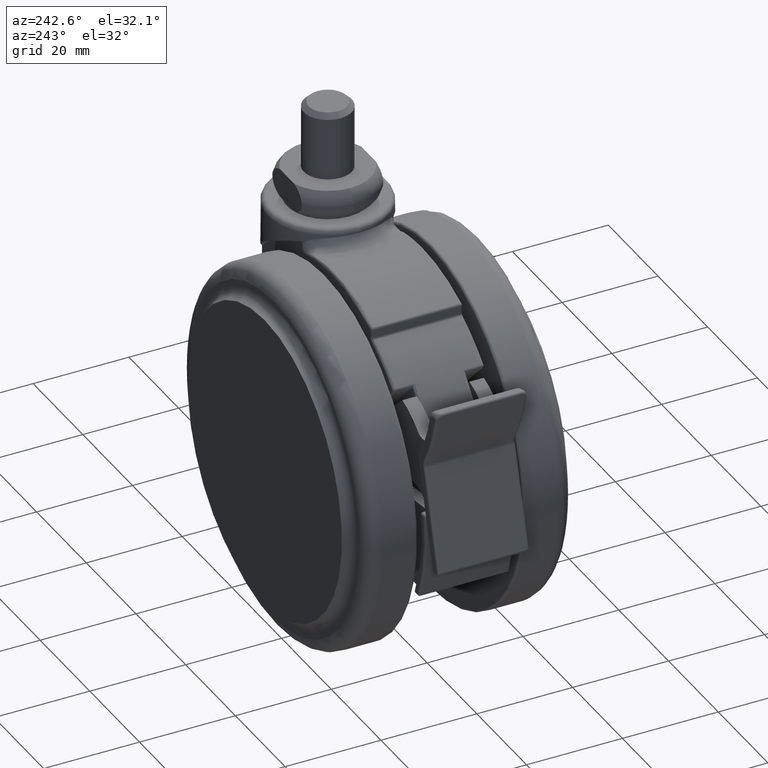
[diagram: clean part render]
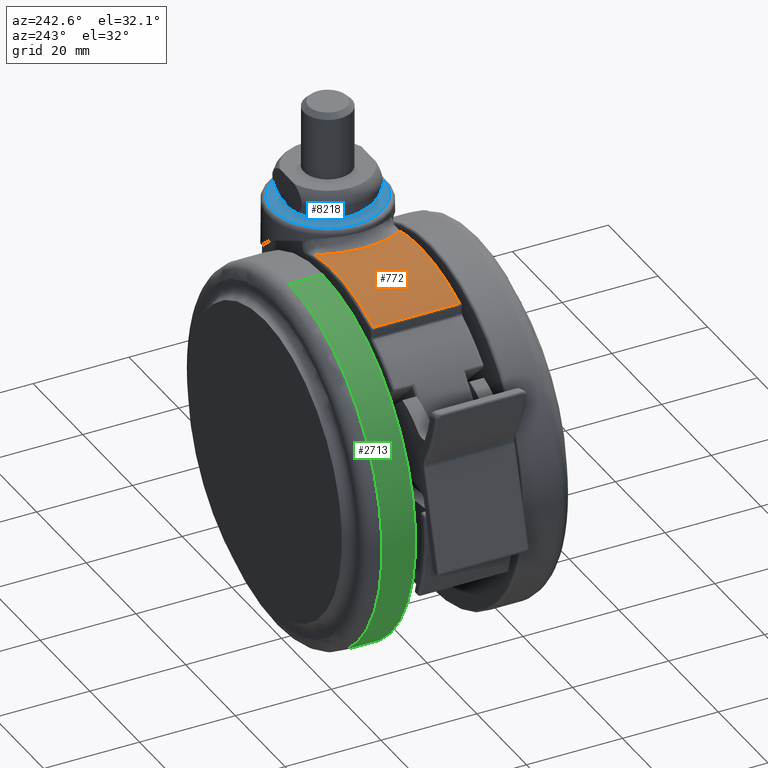
[diagram: same view with three faces highlighted in distinct colors, each labeled with its STEP entity id]
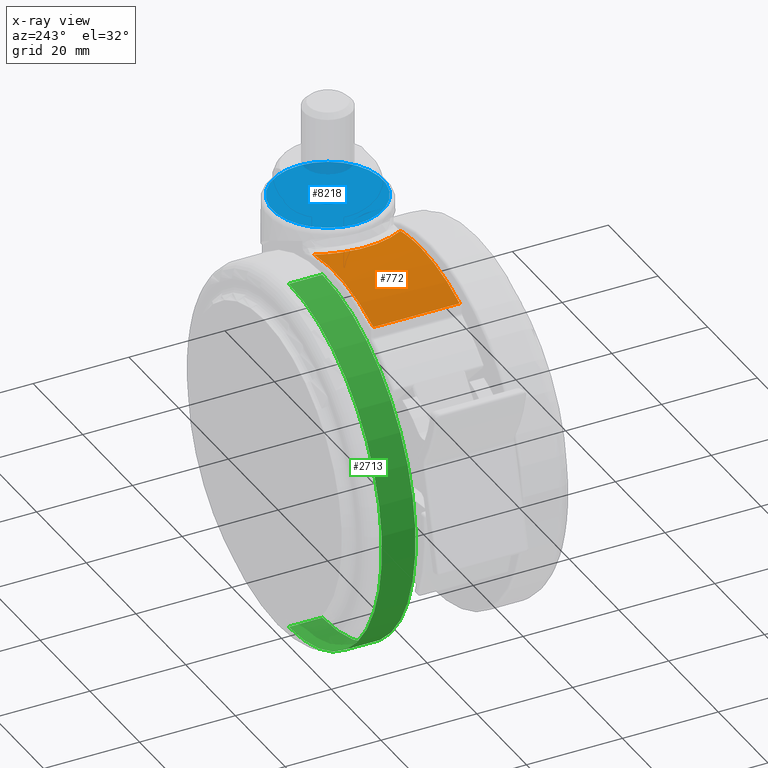
[diagram: x-ray of the same camera — body ghosted, the three highlighted faces saturated]
A machine part, auxiliary view with three faces highlighted in distinct colors.
The next image is the same camera in x-ray (body ghosted, the three faces saturated) — at least one of them is partly hidden behind the body in this view.
Their STEP definitions:

[orange] entity #772 — the highlighted cylindrical surface (partial cylindrical patch) has radius 37.5 mm, axis along (0, -1, 0).
#56 = CARTESIAN_POINT ( 'NONE',  ( -14.46233037150766300, -3.193139030446999100, -3.410910313829803800 ) ) ;
#85 = CARTESIAN_POINT ( 'NONE',  ( -20.00000000000045100, -8.999999999999799300, -40.50000000000000000 ) ) ;
#98 = AXIS2_PLACEMENT_3D ( 'NONE', #85, #8240, #2898 ) ;
#206 = DIRECTION ( 'NONE',  ( 0.0000000000000000000, -1.000000000000000000, 0.0000000000000000000 ) ) ;
#251 = CARTESIAN_POINT ( 'NONE',  ( -20.00000000000045100, -8.999999999999799300, -3.000000000000002700 ) ) ;
#257 = CARTESIAN_POINT ( 'NONE',  ( -11.80583892490720100, -8.999999999999799300, -3.906206478756240100 ) ) ;
#475 = CARTESIAN_POINT ( 'NONE',  ( -13.76673725347666100, -5.515690235254416200, -3.520798847902592200 ) ) ;
#567 = AXIS2_PLACEMENT_3D ( 'NONE', #3206, #7914, #3892 ) ;
#772 = ADVANCED_FACE ( 'NONE', ( #4205 ), #2388, .T. ) ;
#784 = EDGE_CURVE ( 'NONE', #2755, #4024, #5988, .T. ) ;
#877 = EDGE_CURVE ( 'NONE', #4024, #5664, #8020, .T. ) ;
#1056 = CARTESIAN_POINT ( 'NONE',  ( -13.44440981816782200, 6.240356713991120700, -3.577115905190118500 ) ) ;
#1127 = CARTESIAN_POINT ( 'NONE',  ( -35.70945945945850000, 9.000000000000199000, -6.449113322974390000 ) ) ;
#1271 = CIRCLE ( 'NONE', #567, 37.50000000000000000 ) ;
#1353 = CARTESIAN_POINT ( 'NONE',  ( -14.46055519043960800, 3.201425114573142900, -3.411173859305353800 ) ) ;
#1451 = AXIS2_PLACEMENT_3D ( 'NONE', #8278, #206, #5870 ) ;
#1829 = CARTESIAN_POINT ( 'NONE',  ( -14.26965428946589900, -3.988591974172911200, -3.439535616074076400 ) ) ;
#2137 = ORIENTED_EDGE ( 'NONE', *, *, #7159, .T. ) ;
#2239 = DIRECTION ( 'NONE',  ( 0.0000000000000000000, 1.000000000000000000, 0.0000000000000000000 ) ) ;
#2388 = CYLINDRICAL_SURFACE ( 'NONE', #1451, 37.50000000000000000 ) ;
#2685 = EDGE_CURVE ( 'NONE', #2954, #2755, #7830, .T. ) ;
#2716 = CARTESIAN_POINT ( 'NONE',  ( -14.71545526549742400, -1.603279406154955100, -3.373999062487971700 ) ) ;
#2744 = CARTESIAN_POINT ( 'NONE',  ( -14.76286249200867000, 0.8001164787444028400, -3.367488309329601700 ) ) ;
#2755 = VERTEX_POINT ( 'NONE', #251 ) ;
#2898 = DIRECTION ( 'NONE',  ( 0.0000000000000000000, 0.0000000000000000000, 1.000000000000000000 ) ) ;
#2919 = CARTESIAN_POINT ( 'NONE',  ( -14.65106184547922300, 2.009139325001239500, -3.383386752798714300 ) ) ;
#2954 = VERTEX_POINT ( 'NONE', #6541 ) ;
#3206 = CARTESIAN_POINT ( 'NONE',  ( -20.00000000000045100, 9.000000000000199000, -40.50000000000000000 ) ) ;
#3458 = EDGE_CURVE ( 'NONE', #8450, #2954, #4585, .T. ) ;
#3545 = CARTESIAN_POINT ( 'NONE',  ( -14.77855356133890500, 0.3982309277750187800, -3.365292554086369800 ) ) ;
#3892 = DIRECTION ( 'NONE',  ( 0.0000000000000000000, 0.0000000000000000000, -1.000000000000000000 ) ) ;
#4024 = VERTEX_POINT ( 'NONE', #4470 ) ;
#4110 = CARTESIAN_POINT ( 'NONE',  ( -35.70945945945850000, 0.0000000000000000000, -6.449113322974390000 ) ) ;
#4113 = CARTESIAN_POINT ( 'NONE',  ( -12.71933375164516100, -7.671364508898795600, -3.711651338640235700 ) ) ;
#4184 = CARTESIAN_POINT ( 'NONE',  ( -11.80583892490692000, 9.000000000000199000, -3.906206478756300000 ) ) ;
#4205 = FACE_OUTER_BOUND ( 'NONE', #7822, .T. ) ;
#4236 = CARTESIAN_POINT ( 'NONE',  ( -13.45667544474254900, -6.252393314288934100, -3.573375431617505300 ) ) ;
#4470 = CARTESIAN_POINT ( 'NONE',  ( -11.80583892490720100, -8.999999999999799300, -3.906206478756240100 ) ) ;
#4474 = ORIENTED_EDGE ( 'NONE', *, *, #2685, .T. ) ;
#4585 = LINE ( 'NONE', #4110, #8128 ) ;
#4797 = DIRECTION ( 'NONE',  ( 0.0000000000000000000, -1.000000000000000000, 0.0000000000000000000 ) ) ;
#5090 = CARTESIAN_POINT ( 'NONE',  ( -13.75682373942462900, 5.496854230182186100, -3.523008739348636900 ) ) ;
#5306 = ORIENTED_EDGE ( 'NONE', *, *, #3458, .T. ) ;
#5458 = CARTESIAN_POINT ( 'NONE',  ( -14.77833516021256700, -0.8047802647944869400, -3.365323263524405900 ) ) ;
#5550 = CARTESIAN_POINT ( 'NONE',  ( -13.89717161774413700, 5.120679773975008500, -3.499709419589013900 ) ) ;
#5638 = CARTESIAN_POINT ( 'NONE',  ( -14.27199484134090400, 3.979332644004980800, -3.439184762139114500 ) ) ;
#5664 = VERTEX_POINT ( 'NONE', #8585 ) ;
#5870 = DIRECTION ( 'NONE',  ( 0.0000000000000000000, 0.0000000000000000000, -1.000000000000000000 ) ) ;
#5988 = CIRCLE ( 'NONE', #98, 37.50000000000000000 ) ;
#6180 = CARTESIAN_POINT ( 'NONE',  ( -13.27228778837124200, 6.607394942648217500, -3.607947769029147700 ) ) ;
#6276 = CARTESIAN_POINT ( 'NONE',  ( -20.00000000000045100, -8.999999999999799300, -40.50000000000000000 ) ) ;
#6541 = CARTESIAN_POINT ( 'NONE',  ( -35.70945945945850000, -8.999999999999799300, -6.449113322974390000 ) ) ;
#6966 = DIRECTION ( 'NONE',  ( 0.0000000000000000000, 0.0000000000000000000, 1.000000000000000000 ) ) ;
#7007 = CARTESIAN_POINT ( 'NONE',  ( -14.69919688183547300, 1.605694505952603800, -3.376523330406665700 ) ) ;
#7159 = EDGE_CURVE ( 'NONE', #5664, #8450, #1271, .T. ) ;
#7208 = CARTESIAN_POINT ( 'NONE',  ( -12.28908347849011800, -8.357008010647227500, -3.797997317319584500 ) ) ;
#7822 = EDGE_LOOP ( 'NONE', ( #4474, #8231, #8663, #2137, #5306 ) ) ;
#7830 = CIRCLE ( 'NONE', #8530, 37.50000000000000000 ) ;
#7914 = DIRECTION ( 'NONE',  ( 0.0000000000000000000, -1.000000000000000000, 0.0000000000000000000 ) ) ;
#8020 = B_SPLINE_CURVE_WITH_KNOTS ( 'NONE', 3,
 ( #257, #7208, #4113, #4236, #475, #1829, #56, #2716, #5458, #3545, #2744, #7007, #2919, #1353, #5638, #5550, #5090, #1056, #6180, #8419, #8517, #4184 ),
 .UNSPECIFIED., .F., .F.,
 ( 4, 2, 2, 2, 2, 2, 2, 2, 2, 2, 4 ),
 ( 0.0000000000000000000, 0.002433144462994349000, 0.004866288925988697900, 0.007299433388983046400, 0.009732577851977395800, 0.01094915008347457100, 0.01216572231497174500, 0.01459886677796609300, 0.01581543900946326800, 0.01703201124096044600, 0.01946515570395479500 ),
 .UNSPECIFIED. ) ;
#8128 = VECTOR ( 'NONE', #4797, 1000.000000000000000 ) ;
#8231 = ORIENTED_EDGE ( 'NONE', *, *, #784, .T. ) ;
#8240 = DIRECTION ( 'NONE',  ( 0.0000000000000000000, 1.000000000000000000, 0.0000000000000000000 ) ) ;
#8278 = CARTESIAN_POINT ( 'NONE',  ( -20.00000000000045100, 0.0000000000000000000, -40.50000000000000000 ) ) ;
#8419 = CARTESIAN_POINT ( 'NONE',  ( -12.71572096823816400, 7.677998888504805400, -3.712341789016044400 ) ) ;
#8450 = VERTEX_POINT ( 'NONE', #1127 ) ;
#8517 = CARTESIAN_POINT ( 'NONE',  ( -12.28907039948639800, 8.357025413212014100, -3.798000245998260000 ) ) ;
#8530 = AXIS2_PLACEMENT_3D ( 'NONE', #6276, #2239, #6966 ) ;
#8585 = CARTESIAN_POINT ( 'NONE',  ( -11.80583892490692000, 9.000000000000199000, -3.906206478756300000 ) ) ;
#8663 = ORIENTED_EDGE ( 'NONE', *, *, #877, .T. ) ;

[blue] entity #8218 — the highlighted planar face has unit normal (0, 0, 1).
#406 = FACE_BOUND ( 'NONE', #8077, .T. ) ;
#558 = ORIENTED_EDGE ( 'NONE', *, *, #1787, .T. ) ;
#568 = CIRCLE ( 'NONE', #4878, 11.50000000000000000 ) ;
#1243 = DIRECTION ( 'NONE',  ( 0.0000000000000000000, 0.0000000000000000000, 1.000000000000000000 ) ) ;
#1494 = EDGE_LOOP ( 'NONE', ( #558, #5020 ) ) ;
#1506 = CIRCLE ( 'NONE', #4492, 3.000000000000000000 ) ;
#1787 = EDGE_CURVE ( 'NONE', #2084, #4461, #568, .T. ) ;
#1836 = AXIS2_PLACEMENT_3D ( 'NONE', #3601, #8299, #4297 ) ;
#2084 = VERTEX_POINT ( 'NONE', #5727 ) ;
#2173 = VERTEX_POINT ( 'NONE', #3808 ) ;
#2263 = DIRECTION ( 'NONE',  ( 1.000000000000000000, 0.0000000000000000000, 0.0000000000000000000 ) ) ;
#2424 = DIRECTION ( 'NONE',  ( 0.0000000000000000000, 0.0000000000000000000, 1.000000000000000000 ) ) ;
#2580 = EDGE_CURVE ( 'NONE', #7116, #2173, #1506, .T. ) ;
#2672 = CIRCLE ( 'NONE', #2747, 11.50000000000000000 ) ;
#2747 = AXIS2_PLACEMENT_3D ( 'NONE', #5301, #1243, #5971 ) ;
#2797 = DIRECTION ( 'NONE',  ( -0.0000000000000000000, -0.0000000000000000000, 1.000000000000000000 ) ) ;
#2842 = FACE_OUTER_BOUND ( 'NONE', #1494, .T. ) ;
#3601 = CARTESIAN_POINT ( 'NONE',  ( 0.0000000000000000000, 2.842170943040399500E-014, 0.0000000000000000000 ) ) ;
#3639 = ORIENTED_EDGE ( 'NONE', *, *, #2580, .F. ) ;
#3808 = CARTESIAN_POINT ( 'NONE',  ( -3.000000000000000000, 2.878910347014820000E-014, 0.0000000000000000000 ) ) ;
#3873 = EDGE_CURVE ( 'NONE', #2173, #7116, #8332, .T. ) ;
#4297 = DIRECTION ( 'NONE',  ( -1.000000000000000000, 0.0000000000000000000, 0.0000000000000000000 ) ) ;
#4461 = VERTEX_POINT ( 'NONE', #5286 ) ;
#4492 = AXIS2_PLACEMENT_3D ( 'NONE', #6838, #2797, #7514 ) ;
#4497 = CARTESIAN_POINT ( 'NONE',  ( 3.000000000000000000, 2.842170943040399500E-014, 0.0000000000000000000 ) ) ;
#4878 = AXIS2_PLACEMENT_3D ( 'NONE', #6472, #2424, #7153 ) ;
#4968 = CARTESIAN_POINT ( 'NONE',  ( 0.0000000000000000000, 0.0000000000000000000, 0.0000000000000000000 ) ) ;
#5020 = ORIENTED_EDGE ( 'NONE', *, *, #5695, .T. ) ;
#5031 = ORIENTED_EDGE ( 'NONE', *, *, #3873, .F. ) ;
#5286 = CARTESIAN_POINT ( 'NONE',  ( -11.50000000000000000, 2.989128558938082300E-014, 0.0000000000000000000 ) ) ;
#5301 = CARTESIAN_POINT ( 'NONE',  ( 0.0000000000000000000, 2.842170943040399500E-014, 0.0000000000000000000 ) ) ;
#5695 = EDGE_CURVE ( 'NONE', #4461, #2084, #2672, .T. ) ;
#5727 = CARTESIAN_POINT ( 'NONE',  ( 11.50000000000000000, 2.842170943040399500E-014, 0.0000000000000000000 ) ) ;
#5971 = DIRECTION ( 'NONE',  ( 1.000000000000000000, 0.0000000000000000000, 0.0000000000000000000 ) ) ;
#6298 = DIRECTION ( 'NONE',  ( 0.0000000000000000000, 0.0000000000000000000, 1.000000000000000000 ) ) ;
#6472 = CARTESIAN_POINT ( 'NONE',  ( 0.0000000000000000000, 2.842170943040399500E-014, 0.0000000000000000000 ) ) ;
#6838 = CARTESIAN_POINT ( 'NONE',  ( 0.0000000000000000000, 2.842170943040399500E-014, 0.0000000000000000000 ) ) ;
#7116 = VERTEX_POINT ( 'NONE', #4497 ) ;
#7153 = DIRECTION ( 'NONE',  ( 1.000000000000000000, 0.0000000000000000000, 0.0000000000000000000 ) ) ;
#7514 = DIRECTION ( 'NONE',  ( -1.000000000000000000, 0.0000000000000000000, 0.0000000000000000000 ) ) ;
#7628 = PLANE ( 'NONE',  #8012 ) ;
#8012 = AXIS2_PLACEMENT_3D ( 'NONE', #4968, #6298, #2263 ) ;
#8077 = EDGE_LOOP ( 'NONE', ( #3639, #5031 ) ) ;
#8218 = ADVANCED_FACE ( 'NONE', ( #2842, #406 ), #7628, .T. ) ;
#8299 = DIRECTION ( 'NONE',  ( -0.0000000000000000000, -0.0000000000000000000, 1.000000000000000000 ) ) ;
#8332 = CIRCLE ( 'NONE', #1836, 3.000000000000000000 ) ;

[green] entity #2713 — the highlighted cylindrical surface (partial cylindrical patch) has radius 37.5 mm, axis along (0, 1, 0).
#93 = VECTOR ( 'NONE', #3390, 1000.000000000000000 ) ;
#114 = CARTESIAN_POINT ( 'NONE',  ( -20.00000000000000000, 11.50000000000000000, -78.00000000000000000 ) ) ;
#231 = FACE_OUTER_BOUND ( 'NONE', #8064, .T. ) ;
#370 = DIRECTION ( 'NONE',  ( 1.505161159488250100E-015, 1.000000000000000000, 0.0000000000000000000 ) ) ;
#764 = ORIENTED_EDGE ( 'NONE', *, *, #8056, .F. ) ;
#881 = DIRECTION ( 'NONE',  ( 0.0000000000000000000, 0.0000000000000000000, -1.000000000000000000 ) ) ;
#960 = AXIS2_PLACEMENT_3D ( 'NONE', #2840, #7554, #3524 ) ;
#1049 = CARTESIAN_POINT ( 'NONE',  ( -20.00000000000000400, 3.010322318976495200E-014, -3.000000000000002700 ) ) ;
#1372 = CARTESIAN_POINT ( 'NONE',  ( -20.00000000000000400, 18.50000000000000000, -3.000000000000000400 ) ) ;
#1594 = AXIS2_PLACEMENT_3D ( 'NONE', #5630, #4294, #881 ) ;
#1683 = LINE ( 'NONE', #8088, #93 ) ;
#1987 = ORIENTED_EDGE ( 'NONE', *, *, #4695, .F. ) ;
#2048 = VECTOR ( 'NONE', #370, 1000.000000000000000 ) ;
#2132 = EDGE_CURVE ( 'NONE', #4438, #8085, #2256, .T. ) ;
#2256 = LINE ( 'NONE', #1049, #2048 ) ;
#2560 = CARTESIAN_POINT ( 'NONE',  ( -19.99999999999998200, 11.50000000000000000, -3.000000000000002700 ) ) ;
#2713 = ADVANCED_FACE ( 'NONE', ( #231 ), #3623, .T. ) ;
#2840 = CARTESIAN_POINT ( 'NONE',  ( -20.00000000000000000, 18.50000000000000000, -40.50000000000000000 ) ) ;
#3390 = DIRECTION ( 'NONE',  ( 1.505161159488250100E-015, 1.000000000000000000, 0.0000000000000000000 ) ) ;
#3524 = DIRECTION ( 'NONE',  ( 0.0000000000000000000, 0.0000000000000000000, -1.000000000000000000 ) ) ;
#3562 = CARTESIAN_POINT ( 'NONE',  ( -20.00000000000000000, 11.50000000000000000, -40.50000000000000000 ) ) ;
#3623 = CYLINDRICAL_SURFACE ( 'NONE', #1594, 37.50000000000000000 ) ;
#4034 = CIRCLE ( 'NONE', #6299, 37.50000000000000000 ) ;
#4148 = ORIENTED_EDGE ( 'NONE', *, *, #7878, .T. ) ;
#4252 = DIRECTION ( 'NONE',  ( 0.0000000000000000000, 0.0000000000000000000, -1.000000000000000000 ) ) ;
#4294 = DIRECTION ( 'NONE',  ( 1.505161159488250100E-015, 1.000000000000000000, 0.0000000000000000000 ) ) ;
#4438 = VERTEX_POINT ( 'NONE', #2560 ) ;
#4695 = EDGE_CURVE ( 'NONE', #4438, #6434, #4034, .T. ) ;
#4704 = ORIENTED_EDGE ( 'NONE', *, *, #2132, .T. ) ;
#5630 = CARTESIAN_POINT ( 'NONE',  ( -20.00000000000000000, 3.010322318976494600E-014, -40.50000000000000000 ) ) ;
#6299 = AXIS2_PLACEMENT_3D ( 'NONE', #3562, #8258, #4252 ) ;
#6434 = VERTEX_POINT ( 'NONE', #114 ) ;
#6631 = CARTESIAN_POINT ( 'NONE',  ( -20.00000000000000000, 18.50000000000000000, -78.00000000000001400 ) ) ;
#6847 = VERTEX_POINT ( 'NONE', #6631 ) ;
#7554 = DIRECTION ( 'NONE',  ( -1.505161159488250100E-015, -1.000000000000000000, 0.0000000000000000000 ) ) ;
#7878 = EDGE_CURVE ( 'NONE', #8085, #6847, #8108, .T. ) ;
#8056 = EDGE_CURVE ( 'NONE', #6434, #6847, #1683, .T. ) ;
#8064 = EDGE_LOOP ( 'NONE', ( #1987, #4704, #4148, #764 ) ) ;
#8085 = VERTEX_POINT ( 'NONE', #1372 ) ;
#8088 = CARTESIAN_POINT ( 'NONE',  ( -20.00000000000000000, 3.010322318976494600E-014, -78.00000000000000000 ) ) ;
#8108 = CIRCLE ( 'NONE', #960, 37.50000000000000000 ) ;
#8258 = DIRECTION ( 'NONE',  ( -1.505161159488250100E-015, -1.000000000000000000, 0.0000000000000000000 ) ) ;